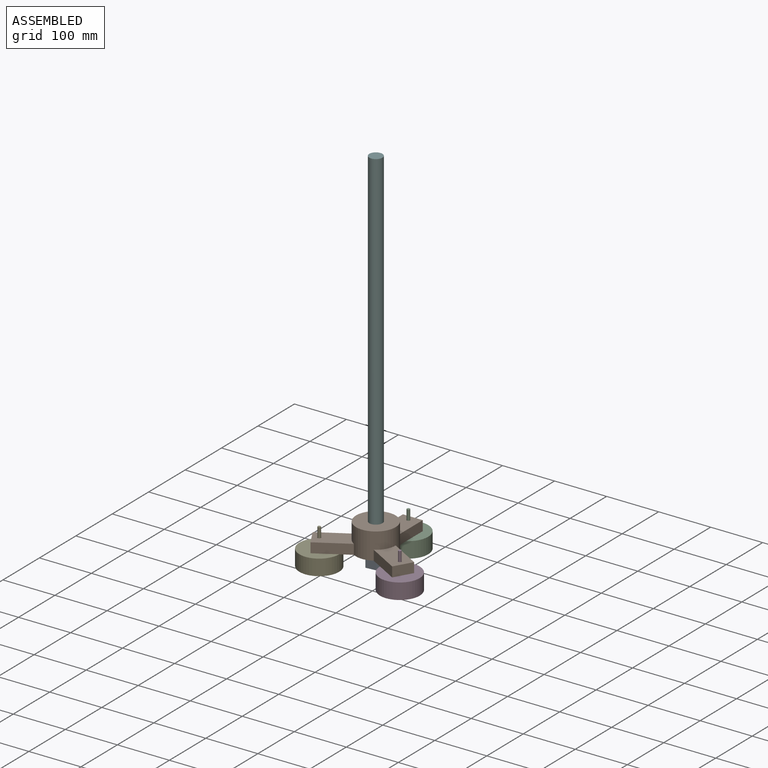
[diagram: assembled view]
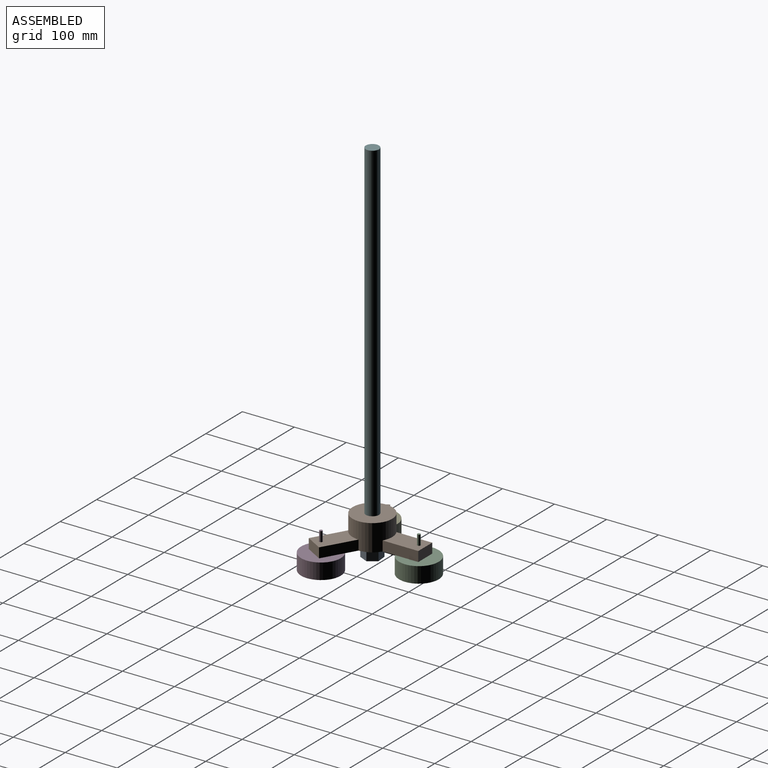
[diagram: assembled view, second angle]
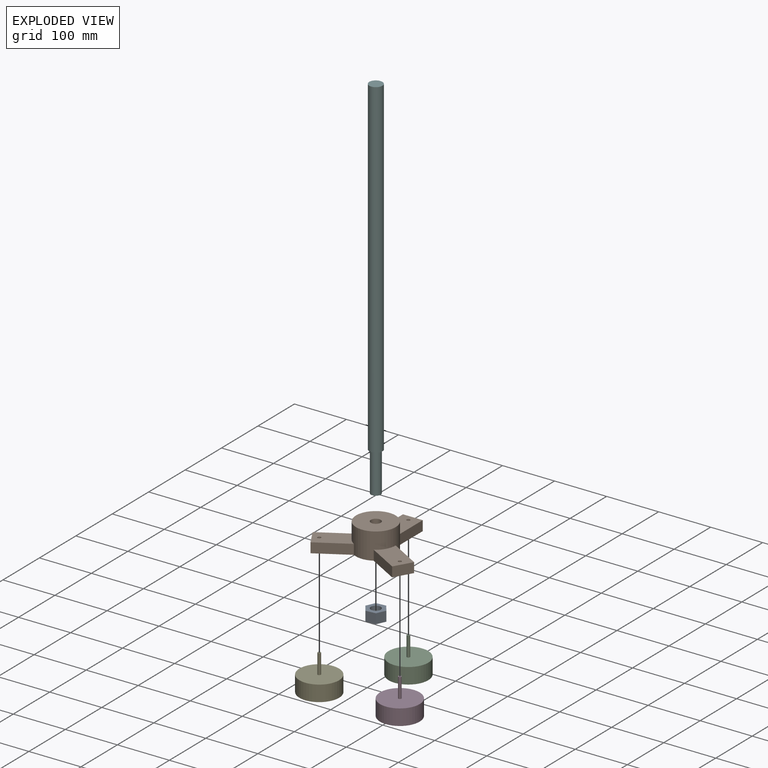
[diagram: exploded view]
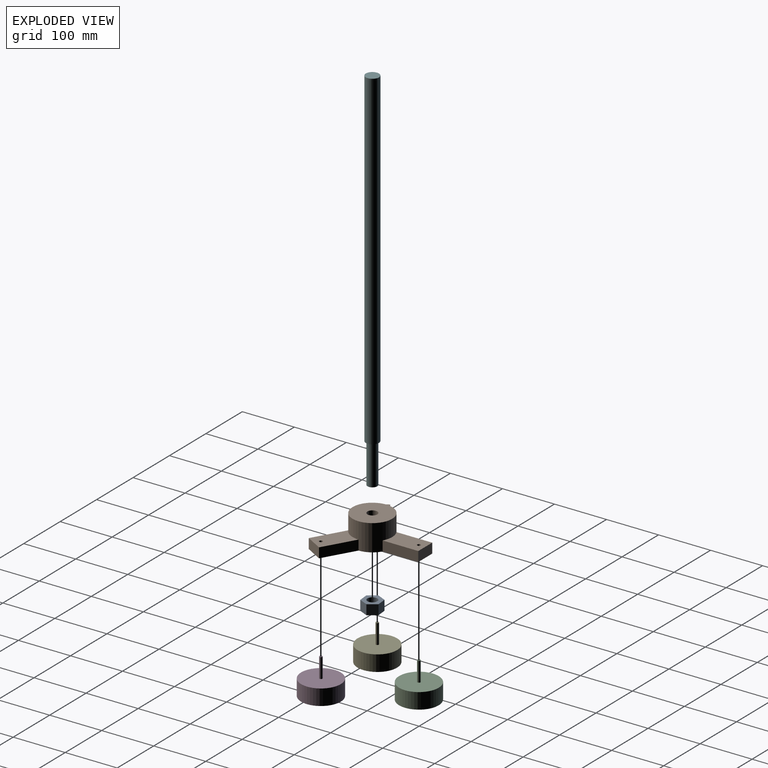
[diagram: exploded view, second angle]
ASSEMBLY  parts=6 mates=5
PART A: 9 faces, bbox 37.9x34.6x19.1 mm
  f0: plane 19.05x15.56mm, normal (-0.82,-0.58,0), area 362.9mm2, adj f1,f5,f6,f7
  f1: plane 19.05x18.97mm, normal (0.09,-1,0), area 362.9mm2, adj f0,f2,f6,f7
  f2: plane 19.05x17.3mm, normal (0.91,-0.42,0), area 362.9mm2, adj f1,f3,f6,f7
  f3: plane 19.05x15.56mm, normal (0.82,0.58,0), area 362.9mm2, adj f2,f4,f6,f7
  f4: plane 19.05x18.97mm, normal (-0.09,1,0), area 362.9mm2, adj f3,f5,f6,f7
  f5: plane 19.05x17.3mm, normal (-0.91,0.42,0), area 362.9mm2, adj f0,f4,f6,f7
  f6: plane 37.94x34.59mm, normal (0,0,1), area 657.8mm2, adj f0,f1,f2,f3,f4,f5,f8
  f7: plane 37.94x34.59mm, normal (0,0,-1), area 657.8mm2, adj f0,f1,f2,f3,f4,f5,f8
  f8: cylinder r=9.53mm len=19.05mm, axis (0,0,1), area 1140.1mm2, adj f6,f7
PART B: 19 faces, bbox 195x168.9x50.8 mm
  f0: cylinder r=38.1mm len=76.2mm, axis (0,0,-1), area 9880.8mm2, adj f1,f2,f4,f5,f6,f8,f9,f10
  f1: plane 76.2x76.2mm, normal (0,0,1), area 4275.3mm2, adj f0,f15
  f2: plane 195.03x168.9mm, normal (0,0,-1), area 11627.3mm2, adj f0,f3,f5,f6,f7,f9,f10,f12
  f3: plane 33x19.05mm, normal (0.87,-0.5,0), area 725.8mm2, adj f2,f4,f5,f6
  f4: plane 78.46x67.3mm, normal (0,0,1), area 2450.7mm2, adj f0,f3,f5,f6,f18
  f5: plane 59.41x34.3mm, normal (0.5,0.87,0), area 1306.9mm2, adj f0,f2,f3,f4
  f6: plane 59.41x34.3mm, normal (-0.5,-0.87,0), area 1306.9mm2, adj f0,f2,f3,f4
  f7: plane 33x19.05mm, normal (-0.87,-0.5,0), area 725.8mm2, adj f2,f8,f9,f10
  f8: plane 78.46x67.3mm, normal (0,0,1), area 2450.7mm2, adj f0,f7,f9,f10,f17
  f9: plane 59.41x34.3mm, normal (0.5,-0.87,0), area 1306.9mm2, adj f0,f2,f7,f8
  f10: plane 59.41x34.3mm, normal (-0.5,0.87,0), area 1306.9mm2, adj f0,f2,f7,f8
  f11: plane 68.6x38.1mm, normal (0,0,1), area 2450.7mm2, adj f0,f12,f13,f14,f16
  f12: plane 68.6x19.05mm, normal (-1,0,0), area 1306.9mm2, adj f0,f2,f11,f14
  f13: plane 68.6x19.05mm, normal (1,0,0), area 1306.9mm2, adj f0,f2,f11,f14
  f14: plane 38.1x19.05mm, normal (0,1,0), area 725.8mm2, adj f2,f11,f12,f13
  f15: cylinder r=9.53mm len=50.8mm, axis (0,0,1), area 3040.2mm2, adj f1,f2
  f16: cylinder r=3.17mm len=19.05mm, axis (0,0,1), area 380mm2, adj f2,f11
  f17: cylinder r=3.17mm len=19.05mm, axis (0,0,1), area 380mm2, adj f2,f8
  f18: cylinder r=3.17mm len=19.05mm, axis (0,0,1), area 380mm2, adj f2,f4
PART C: 5 faces, bbox 76.2x76.2x68.6 mm
  f0: cylinder r=38.1mm len=76.2mm, axis (0,0,-1), area 7296.6mm2, adj f1,f2
  f1: plane 76.2x76.2mm, normal (0,0,1), area 4533.6mm2, adj f0,f3
  f2: plane 76.2x76.2mm, normal (0,0,-1), area 4560.4mm2, adj f0
  f3: cylinder r=2.92mm len=38.1mm, axis (0,0,-1), area 699.3mm2, adj f1,f4
  f4: plane 5.84x5.84mm, normal (0,0,1), area 26.8mm2, adj f3
PART D: same geometry as C
PART E: same geometry as C
PART F: 5 faces, bbox 25.4x25.4x711.2 mm
  f0: cylinder r=12.7mm len=635mm, axis (0,0,-1), area 50670.7mm2, adj f1,f2
  f1: plane 25.4x25.4mm, normal (0,0,1), area 506.7mm2, adj f0
  f2: plane 25.4x25.4mm, normal (0,0,-1), area 221.7mm2, adj f0,f3
  f3: cylinder r=9.53mm len=76.2mm, axis (0,0,1), area 4560.4mm2, adj f2,f4
  f4: plane 19.05x19.05mm, normal (0,0,-1), area 285mm2, adj f3
PLACE A t=(39.28,67.81,-289.37)mm
PLACE B t=(39.28,67.81,-263.97)mm
PLACE C t=(39.28,157.22,-294.45)mm
PLACE D t=(116.71,23.11,-294.45)mm
PLACE E t=(-38.15,23.11,-294.45)mm
PLACE F t=(39.28,67.81,-213.17)mm
MATE planar D.f0 <-> B.f2  axis (0,0,1) through (116.71,23.11,-263.97)mm
MATE planar E.f0 <-> B.f2  axis (0,0,1) through (-38.15,23.11,-263.97)mm
MATE slider A.f8 <-> B.f0  axis (0,0,1) through (39.28,67.81,-270.32)mm
MATE slider F.f0 <-> B.f15  axis (0,0,-1) through (39.28,67.81,-213.17)mm
MATE planar C.f0 <-> B.f2  axis (0,0,1) through (39.28,157.22,-263.97)mm
